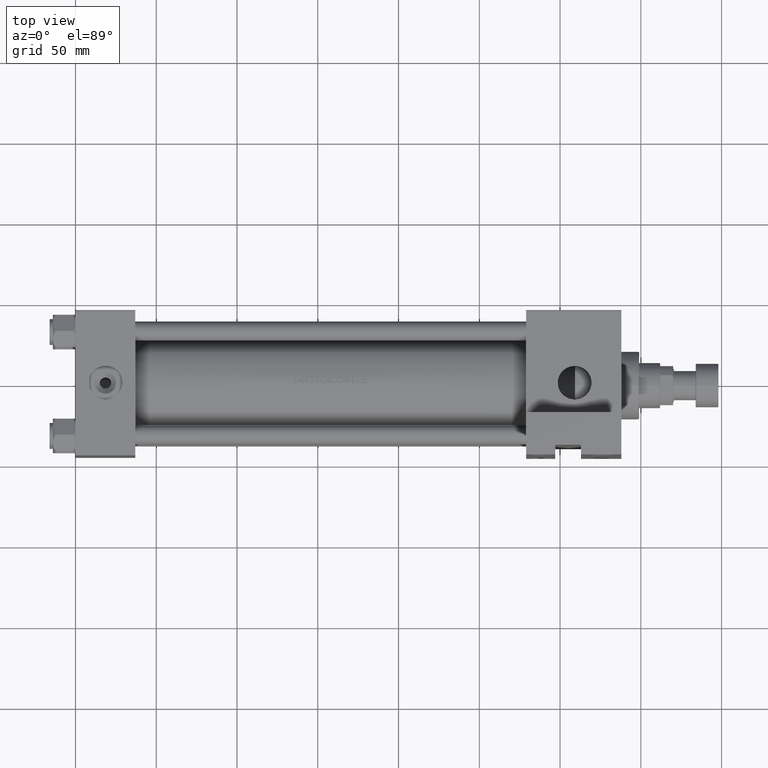
[diagram: clean part render]
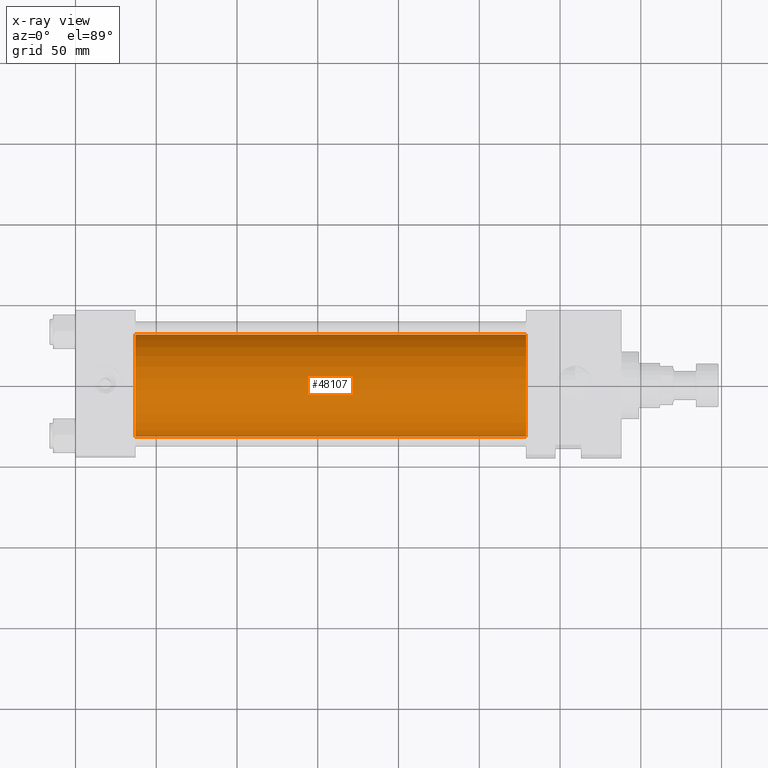
[diagram: x-ray — body ghosted, one internal face saturated and labeled with its STEP entity id]
A machine part, top view, then the same camera in x-ray: the body is ghosted and one INTERNAL B-rep face — a face not visible from any outside direction — is saturated and labeled: STEP entity #48107.
In plain terms, the highlighted cylindrical surface (partial cylindrical patch) has radius 31.5 mm, axis along (-1, -0, 0).
Its self-contained STEP definition (entity closure, byte-faithful):
#331 = CARTESIAN_POINT ( 'NONE',  ( 37.00000000000000000, 0.000000000000000000, 30.49999999999999289 ) ) ;
#397 = CARTESIAN_POINT ( 'NONE',  ( 37.00000000000000000, 0.000000000000000000, -1.000000000000007772 ) ) ;
#2077 = CARTESIAN_POINT ( 'NONE',  ( 278.9999999999999432, 3.857637417314162689E-15, -32.50000000000000711 ) ) ;
#2279 = AXIS2_PLACEMENT_3D ( 'NONE', #26365, #41849, #49698 ) ;
#3381 = ORIENTED_EDGE ( 'NONE', *, *, #20244, .T. ) ;
#3935 = DIRECTION ( 'NONE',  ( 0.000000000000000000, 0.000000000000000000, -1.000000000000000000 ) ) ;
#10574 = AXIS2_PLACEMENT_3D ( 'NONE', #397, #11289, #3935 ) ;
#10939 = VERTEX_POINT ( 'NONE', #33109 ) ;
#11215 = VERTEX_POINT ( 'NONE', #331 ) ;
#11289 = DIRECTION ( 'NONE',  ( 1.000000000000000000, 0.000000000000000000, 0.000000000000000000 ) ) ;
#11367 = EDGE_CURVE ( 'NONE', #21190, #10939, #40675, .T. ) ;
#12620 = DIRECTION ( 'NONE',  ( -1.000000000000000000, -0.000000000000000000, -0.000000000000000000 ) ) ;
#12953 = FACE_OUTER_BOUND ( 'NONE', #18972, .T. ) ;
#13897 = ORIENTED_EDGE ( 'NONE', *, *, #29811, .F. ) ;
#13913 = CARTESIAN_POINT ( 'NONE',  ( 278.9999999999999432, 0.000000000000000000, 30.49999999999999289 ) ) ;
#15326 = ORIENTED_EDGE ( 'NONE', *, *, #11367, .T. ) ;
#18972 = EDGE_LOOP ( 'NONE', ( #3381, #15326, #13897, #40823 ) ) ;
#20244 = EDGE_CURVE ( 'NONE', #42752, #21190, #36327, .T. ) ;
#21190 = VERTEX_POINT ( 'NONE', #48910 ) ;
#21373 = DIRECTION ( 'NONE',  ( -1.000000000000000000, -0.000000000000000000, -0.000000000000000000 ) ) ;
#24795 = VECTOR ( 'NONE', #21373, 1000.000000000000000 ) ;
#26365 = CARTESIAN_POINT ( 'NONE',  ( 278.9999999999999432, 0.000000000000000000, -1.000000000000007772 ) ) ;
#27451 = DIRECTION ( 'NONE',  ( -1.000000000000000000, -0.000000000000000000, -0.000000000000000000 ) ) ;
#27607 = CIRCLE ( 'NONE', #10574, 31.50000000000000000 ) ;
#28457 = CYLINDRICAL_SURFACE ( 'NONE', #28598, 31.50000000000000000 ) ;
#28598 = AXIS2_PLACEMENT_3D ( 'NONE', #36322, #27451, #42924 ) ;
#28868 = LINE ( 'NONE', #43845, #39763 ) ;
#28883 = EDGE_CURVE ( 'NONE', #42752, #11215, #28868, .T. ) ;
#29811 = EDGE_CURVE ( 'NONE', #11215, #10939, #27607, .T. ) ;
#33109 = CARTESIAN_POINT ( 'NONE',  ( 37.00000000000000000, 3.857637417314162689E-15, -32.50000000000000711 ) ) ;
#36322 = CARTESIAN_POINT ( 'NONE',  ( 278.9999999999999432, 0.000000000000000000, -1.000000000000007772 ) ) ;
#36327 = CIRCLE ( 'NONE', #2279, 31.50000000000000000 ) ;
#39763 = VECTOR ( 'NONE', #12620, 1000.000000000000000 ) ;
#40675 = LINE ( 'NONE', #2077, #24795 ) ;
#40823 = ORIENTED_EDGE ( 'NONE', *, *, #28883, .F. ) ;
#41849 = DIRECTION ( 'NONE',  ( 1.000000000000000000, 0.000000000000000000, 0.000000000000000000 ) ) ;
#42752 = VERTEX_POINT ( 'NONE', #13913 ) ;
#42924 = DIRECTION ( 'NONE',  ( 0.000000000000000000, 0.000000000000000000, 1.000000000000000000 ) ) ;
#43845 = CARTESIAN_POINT ( 'NONE',  ( 278.9999999999999432, 0.000000000000000000, 30.49999999999999289 ) ) ;
#48107 = ADVANCED_FACE ( 'NONE', ( #12953 ), #28457, .F. ) ;
#48910 = CARTESIAN_POINT ( 'NONE',  ( 278.9999999999999432, 3.857637417314162689E-15, -32.50000000000000711 ) ) ;
#49698 = DIRECTION ( 'NONE',  ( 0.000000000000000000, 0.000000000000000000, -1.000000000000000000 ) ) ;